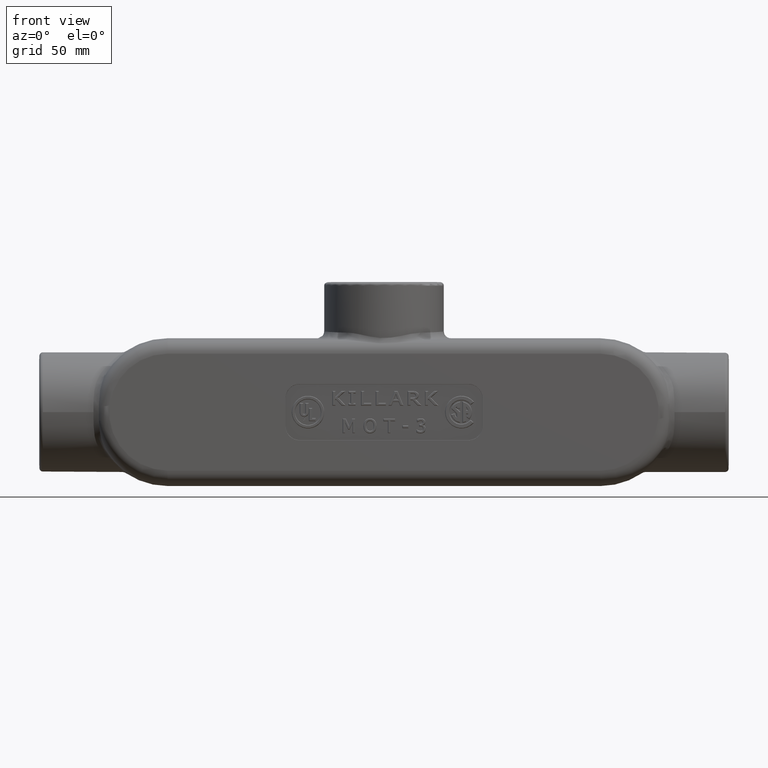
[diagram: clean part render]
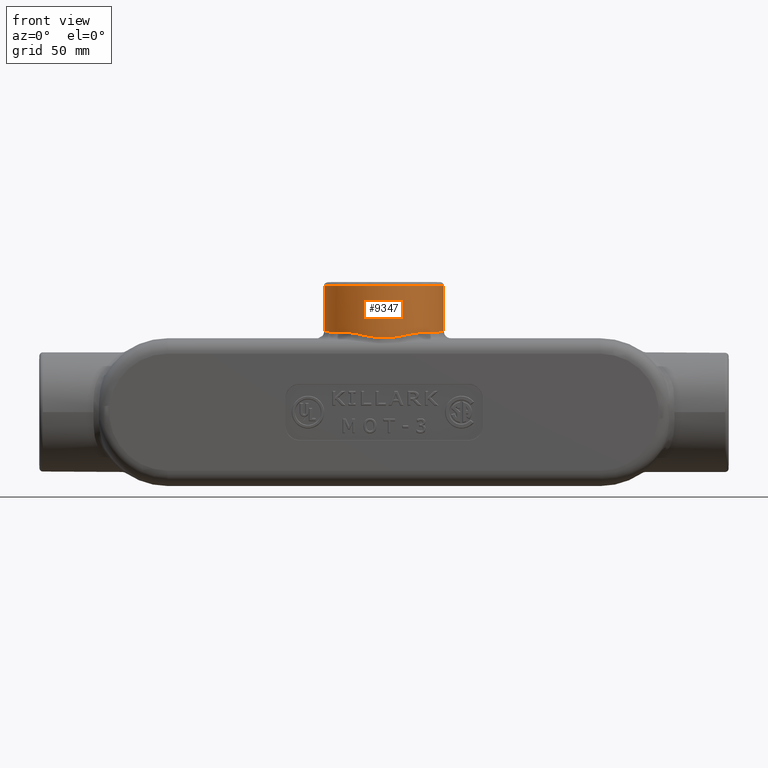
[diagram: same view with one face highlighted and labeled with its STEP entity id]
A machine part, front view. The second image highlights one B-rep face of the part: STEP entity #9347.
In plain terms, the highlighted cylindrical surface (bore or boss wall) has radius 26.9875 mm, axis along (0, 0, -1).
Its self-contained STEP definition (entity closure, byte-faithful):
#45=CYLINDRICAL_SURFACE('',#9973,1.0625);
#119=ELLIPSE('',#9956,1.06295493679163,1.0625);
#120=ELLIPSE('',#9974,1.06295493679163,1.0625);
#121=ELLIPSE('',#9975,1.06295493679163,1.0625);
#653=B_SPLINE_CURVE_WITH_KNOTS('',3,(#22679,#22680,#22681,#22682,#22683,
#22684,#22685,#22686,#22687,#22688),.UNSPECIFIED.,.F.,.F.,(4,1,1,1,1,1,
1,4),(0.,0.562898606655327,1.12579721331065,1.68869581996598,2.25159442662131,
2.81449303327663,3.37739163993196,3.94029024658729),.UNSPECIFIED.);
#1292=FACE_OUTER_BOUND('',#1832,.T.);
#1832=EDGE_LOOP('',(#7637,#7638,#7639,#7640,#7641,#7642,#7643,#7644,#7645));
#2381=LINE('',#22676,#3115);
#3115=VECTOR('',#11212,1.0625);
#3704=CIRCLE('',#9951,1.0625);
#3705=CIRCLE('',#9952,1.0625);
#3707=CIRCLE('',#9954,1.0625);
#4250=VERTEX_POINT('',#22144);
#4251=VERTEX_POINT('',#22145);
#4252=VERTEX_POINT('',#22147);
#4255=VERTEX_POINT('',#22204);
#4256=VERTEX_POINT('',#22236);
#4277=VERTEX_POINT('',#22674);
#4278=VERTEX_POINT('',#22677);
#5437=EDGE_CURVE('',#4250,#4251,#3704,.T.);
#5438=EDGE_CURVE('',#4251,#4252,#3705,.T.);
#5440=EDGE_CURVE('',#4252,#4250,#3707,.T.);
#5443=EDGE_CURVE('',#4255,#4256,#119,.T.);
#5475=EDGE_CURVE('',#4256,#4277,#120,.T.);
#5476=EDGE_CURVE('',#4255,#4251,#2381,.T.);
#5477=EDGE_CURVE('',#4278,#4255,#121,.T.);
#5478=EDGE_CURVE('',#4277,#4278,#653,.T.);
#7637=ORIENTED_EDGE('',*,*,#5475,.F.);
#7638=ORIENTED_EDGE('',*,*,#5443,.F.);
#7639=ORIENTED_EDGE('',*,*,#5476,.T.);
#7640=ORIENTED_EDGE('',*,*,#5437,.F.);
#7641=ORIENTED_EDGE('',*,*,#5440,.F.);
#7642=ORIENTED_EDGE('',*,*,#5438,.F.);
#7643=ORIENTED_EDGE('',*,*,#5476,.F.);
#7644=ORIENTED_EDGE('',*,*,#5477,.F.);
#7645=ORIENTED_EDGE('',*,*,#5478,.F.);
#9347=ADVANCED_FACE('',(#1292),#45,.T.);
#9951=AXIS2_PLACEMENT_3D('',#22146,#11154,#11155);
#9952=AXIS2_PLACEMENT_3D('',#22148,#11156,#11157);
#9954=AXIS2_PLACEMENT_3D('',#22150,#11160,#11161);
#9956=AXIS2_PLACEMENT_3D('',#22237,#11164,#11165);
#9973=AXIS2_PLACEMENT_3D('',#22673,#11208,#11209);
#9974=AXIS2_PLACEMENT_3D('',#22675,#11210,#11211);
#9975=AXIS2_PLACEMENT_3D('',#22678,#11213,#11214);
#11154=DIRECTION('center_axis',(0.,0.,1.));
#11155=DIRECTION('ref_axis',(6.12323399573677E-17,-1.,0.));
#11156=DIRECTION('center_axis',(0.,0.,1.));
#11157=DIRECTION('ref_axis',(6.12323399573677E-17,-1.,0.));
#11160=DIRECTION('center_axis',(0.,0.,1.));
#11161=DIRECTION('ref_axis',(6.12323399573677E-17,-1.,0.));
#11164=DIRECTION('center_axis',(-1.64600759683426E-16,-0.029254092329885,
-0.999572007452167));
#11165=DIRECTION('ref_axis',(0.,0.999572007452167,-0.029254092329885));
#11208=DIRECTION('center_axis',(0.,0.,-1.));
#11209=DIRECTION('ref_axis',(1.,0.,0.));
#11210=DIRECTION('center_axis',(-1.64600759683426E-16,0.029254092329885,
-0.999572007452167));
#11211=DIRECTION('ref_axis',(0.,-0.999572007452167,-0.029254092329885));
#11212=DIRECTION('',(0.,0.,1.));
#11213=DIRECTION('center_axis',(-1.64600759683426E-16,0.029254092329885,
-0.999572007452167));
#11214=DIRECTION('ref_axis',(0.,-0.999572007452167,-0.029254092329885));
#22144=CARTESIAN_POINT('',(-1.95178083614109E-16,1.0625,2.24711121705749));
#22145=CARTESIAN_POINT('',(-1.0625,1.30118722409406E-16,2.24711121705749));
#22146=CARTESIAN_POINT('Origin',(0.,0.,2.24711121705749));
#22147=CARTESIAN_POINT('',(1.0625,-1.30118722409406E-16,2.24711121705749));
#22148=CARTESIAN_POINT('Origin',(0.,0.,2.24711121705749));
#22150=CARTESIAN_POINT('Origin',(0.,0.,2.24711121705749));
#22204=CARTESIAN_POINT('',(-1.0625,-1.6574683284296E-16,1.43754284906136));
#22236=CARTESIAN_POINT('',(1.0625,1.75979230213325E-16,1.43754284906136));
#22237=CARTESIAN_POINT('Origin',(0.,0.,1.43754284906136));
#22673=CARTESIAN_POINT('Origin',(0.,0.,2.3125));
#22674=CARTESIAN_POINT('',(0.640689042208148,-0.847598844498036,1.412736497272));
#22675=CARTESIAN_POINT('Origin',(0.,0.,1.43754284906136));
#22676=CARTESIAN_POINT('',(-1.0625,1.30118722409406E-16,2.3125));
#22677=CARTESIAN_POINT('',(-0.640689042208642,-0.847598844497662,1.41273649727202));
#22678=CARTESIAN_POINT('Origin',(0.,0.,1.43754284906136));
#22679=CARTESIAN_POINT('Ctrl Pts',(0.640689042208148,-0.847598844498036,
1.412736497272));
#22680=CARTESIAN_POINT('Ctrl Pts',(0.587968750368476,-0.887449433609796,
1.41157020529445));
#22681=CARTESIAN_POINT('Ctrl Pts',(0.475540615110201,-0.956855820035292,
1.39391983398756));
#22682=CARTESIAN_POINT('Ctrl Pts',(0.293444445592983,-1.027349130704,1.35092399355629));
#22683=CARTESIAN_POINT('Ctrl Pts',(0.100013084045066,-1.06400882361817,
1.3159693047713));
#22684=CARTESIAN_POINT('Ctrl Pts',(-0.0999523943314642,-1.06400654998929,
1.31608726025241));
#22685=CARTESIAN_POINT('Ctrl Pts',(-0.29350158131898,-1.02732159322642,
1.35092674902588));
#22686=CARTESIAN_POINT('Ctrl Pts',(-0.475511217502066,-0.956870612157499,
1.39393943474084));
#22687=CARTESIAN_POINT('Ctrl Pts',(-0.587968750368998,-0.887449433609449,
1.41157020529451));
#22688=CARTESIAN_POINT('Ctrl Pts',(-0.640689042208642,-0.847598844497662,
1.41273649727202));